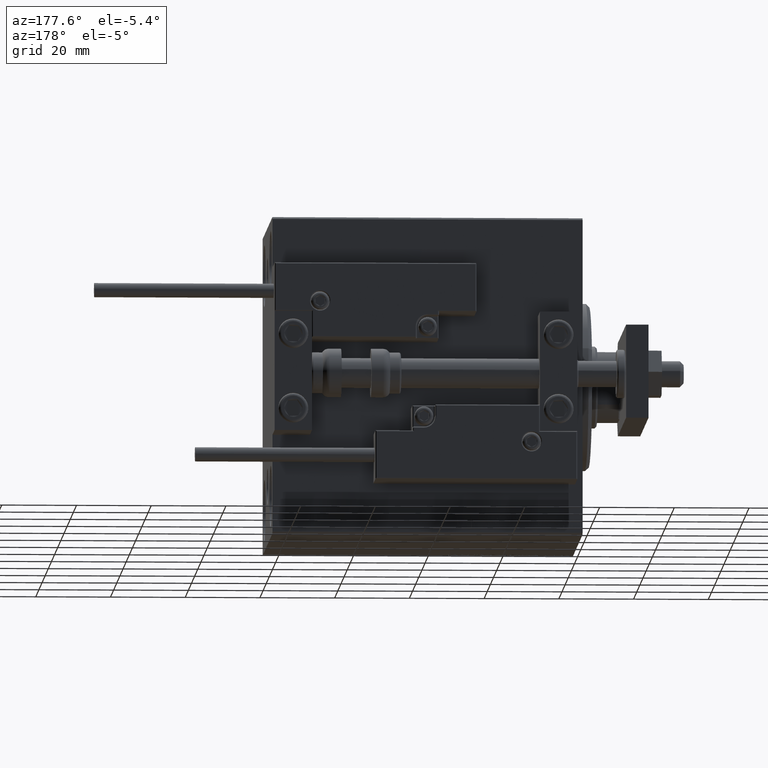
[diagram: clean part render]
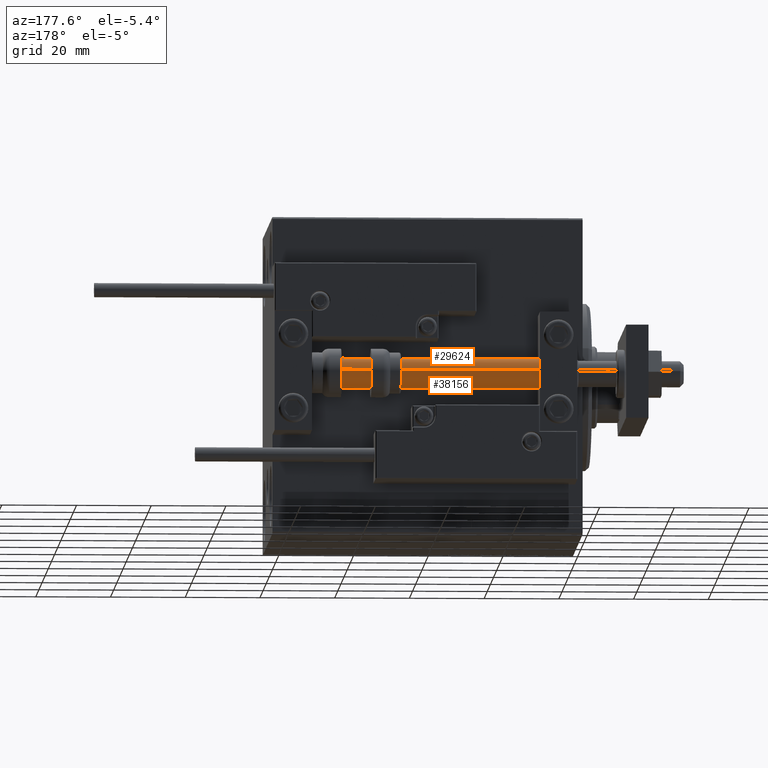
[diagram: same view with one multi-face feature highlighted, each face labeled with its STEP entity id]
A machine part, auxiliary view. The highlighted faces form ONE feature: a constant-radius fillet chain: 2 tangent blend faces with common blend radius 4 mm. The faces share edges in the B-rep.
Their STEP definitions:
[1] entity #38156 (Cylinder):
#3817 = ORIENTED_EDGE ( 'NONE', *, *, #25997, .F. ) ;
#4282 = DIRECTION ( 'NONE',  ( 0.000000000000000000, 0.000000000000000000, 1.000000000000000000 ) ) ;
#5791 = VERTEX_POINT ( 'NONE', #20587 ) ;
#8063 = LINE ( 'NONE', #19219, #34789 ) ;
#8356 = VECTOR ( 'NONE', #11526, 1000.000000000000000 ) ;
#10345 = FACE_OUTER_BOUND ( 'NONE', #11539, .T. ) ;
#10486 = EDGE_CURVE ( 'NONE', #33904, #5791, #20463, .T. ) ;
#11363 = DIRECTION ( 'NONE',  ( -0.000000000000000000, -0.000000000000000000, -1.000000000000000000 ) ) ;
#11526 = DIRECTION ( 'NONE',  ( -0.000000000000000000, -0.000000000000000000, -1.000000000000000000 ) ) ;
#11539 = EDGE_LOOP ( 'NONE', ( #40015, #3817, #43980, #38231 ) ) ;
#12011 = CARTESIAN_POINT ( 'NONE',  ( -4.000000000000000000, 0.000000000000000000, 83.00000000000000000 ) ) ;
#14391 = DIRECTION ( 'NONE',  ( -0.000000000000000000, -0.000000000000000000, -1.000000000000000000 ) ) ;
#15627 = VERTEX_POINT ( 'NONE', #15679 ) ;
#15679 = CARTESIAN_POINT ( 'NONE',  ( 4.000000000000000000, 4.898587196589412829E-16, 83.00000000000000000 ) ) ;
#19219 = CARTESIAN_POINT ( 'NONE',  ( 4.000000000000000000, 4.898587196589412829E-16, 83.00000000000000000 ) ) ;
#19376 = LINE ( 'NONE', #12011, #8356 ) ;
#20463 = CIRCLE ( 'NONE', #34181, 4.000000000000000000 ) ;
#20587 = CARTESIAN_POINT ( 'NONE',  ( 4.000000000000000000, 4.898587196589412829E-16, 2.000000000000029310 ) ) ;
#23138 = DIRECTION ( 'NONE',  ( -0.000000000000000000, -0.000000000000000000, 1.000000000000000000 ) ) ;
#24067 = VERTEX_POINT ( 'NONE', #30833 ) ;
#25797 = DIRECTION ( 'NONE',  ( -1.000000000000000000, 0.000000000000000000, 0.000000000000000000 ) ) ;
#25997 = EDGE_CURVE ( 'NONE', #24067, #15627, #45853, .T. ) ;
#27422 = CARTESIAN_POINT ( 'NONE',  ( 0.000000000000000000, 0.000000000000000000, 2.000000000000029310 ) ) ;
#27677 = DIRECTION ( 'NONE',  ( 1.000000000000000000, 0.000000000000000000, 0.000000000000000000 ) ) ;
#28666 = CARTESIAN_POINT ( 'NONE',  ( -4.000000000000000000, 0.000000000000000000, 2.000000000000029310 ) ) ;
#30833 = CARTESIAN_POINT ( 'NONE',  ( -4.000000000000000000, 0.000000000000000000, 83.00000000000000000 ) ) ;
#33146 = CYLINDRICAL_SURFACE ( 'NONE', #34848, 4.000000000000000000 ) ;
#33904 = VERTEX_POINT ( 'NONE', #28666 ) ;
#34181 = AXIS2_PLACEMENT_3D ( 'NONE', #27422, #23138, #27677 ) ;
#34689 = CARTESIAN_POINT ( 'NONE',  ( 0.000000000000000000, 0.000000000000000000, 83.00000000000000000 ) ) ;
#34789 = VECTOR ( 'NONE', #11363, 1000.000000000000000 ) ;
#34848 = AXIS2_PLACEMENT_3D ( 'NONE', #48567, #14391, #25797 ) ;
#37985 = DIRECTION ( 'NONE',  ( 1.000000000000000000, 0.000000000000000000, 0.000000000000000000 ) ) ;
#38156 = ADVANCED_FACE ( 'NONE', ( #10345 ), #33146, .T. ) ;
#38231 = ORIENTED_EDGE ( 'NONE', *, *, #10486, .T. ) ;
#38586 = AXIS2_PLACEMENT_3D ( 'NONE', #34689, #4282, #37985 ) ;
#40015 = ORIENTED_EDGE ( 'NONE', *, *, #49980, .F. ) ;
#42363 = EDGE_CURVE ( 'NONE', #24067, #33904, #19376, .T. ) ;
#43980 = ORIENTED_EDGE ( 'NONE', *, *, #42363, .T. ) ;
#45853 = CIRCLE ( 'NONE', #38586, 4.000000000000000000 ) ;
#48567 = CARTESIAN_POINT ( 'NONE',  ( 0.000000000000000000, 0.000000000000000000, 83.00000000000000000 ) ) ;
#49980 = EDGE_CURVE ( 'NONE', #15627, #5791, #8063, .T. ) ;
[2] entity #29624 (Cylinder):
#1001 = EDGE_LOOP ( 'NONE', ( #29452, #48168, #46679, #15800 ) ) ;
#1790 = CYLINDRICAL_SURFACE ( 'NONE', #44320, 4.000000000000000000 ) ;
#4214 = EDGE_CURVE ( 'NONE', #15627, #24067, #31554, .T. ) ;
#4756 = DIRECTION ( 'NONE',  ( -0.000000000000000000, -0.000000000000000000, 1.000000000000000000 ) ) ;
#5791 = VERTEX_POINT ( 'NONE', #20587 ) ;
#8063 = LINE ( 'NONE', #19219, #34789 ) ;
#8356 = VECTOR ( 'NONE', #11526, 1000.000000000000000 ) ;
#11363 = DIRECTION ( 'NONE',  ( -0.000000000000000000, -0.000000000000000000, -1.000000000000000000 ) ) ;
#11526 = DIRECTION ( 'NONE',  ( -0.000000000000000000, -0.000000000000000000, -1.000000000000000000 ) ) ;
#12011 = CARTESIAN_POINT ( 'NONE',  ( -4.000000000000000000, 0.000000000000000000, 83.00000000000000000 ) ) ;
#13206 = CARTESIAN_POINT ( 'NONE',  ( 0.000000000000000000, 0.000000000000000000, 83.00000000000000000 ) ) ;
#15627 = VERTEX_POINT ( 'NONE', #15679 ) ;
#15679 = CARTESIAN_POINT ( 'NONE',  ( 4.000000000000000000, 4.898587196589412829E-16, 83.00000000000000000 ) ) ;
#15800 = ORIENTED_EDGE ( 'NONE', *, *, #42363, .F. ) ;
#16473 = EDGE_CURVE ( 'NONE', #5791, #33904, #44846, .T. ) ;
#17007 = DIRECTION ( 'NONE',  ( -1.000000000000000000, 0.000000000000000000, 0.000000000000000000 ) ) ;
#17510 = FACE_OUTER_BOUND ( 'NONE', #1001, .T. ) ;
#19219 = CARTESIAN_POINT ( 'NONE',  ( 4.000000000000000000, 4.898587196589412829E-16, 83.00000000000000000 ) ) ;
#19376 = LINE ( 'NONE', #12011, #8356 ) ;
#20587 = CARTESIAN_POINT ( 'NONE',  ( 4.000000000000000000, 4.898587196589412829E-16, 2.000000000000029310 ) ) ;
#23055 = AXIS2_PLACEMENT_3D ( 'NONE', #30890, #4756, #34927 ) ;
#24067 = VERTEX_POINT ( 'NONE', #30833 ) ;
#28666 = CARTESIAN_POINT ( 'NONE',  ( -4.000000000000000000, 0.000000000000000000, 2.000000000000029310 ) ) ;
#29128 = AXIS2_PLACEMENT_3D ( 'NONE', #36420, #31898, #32385 ) ;
#29452 = ORIENTED_EDGE ( 'NONE', *, *, #4214, .F. ) ;
#29624 = ADVANCED_FACE ( 'NONE', ( #17510 ), #1790, .T. ) ;
#30833 = CARTESIAN_POINT ( 'NONE',  ( -4.000000000000000000, 0.000000000000000000, 83.00000000000000000 ) ) ;
#30890 = CARTESIAN_POINT ( 'NONE',  ( 0.000000000000000000, 0.000000000000000000, 2.000000000000029310 ) ) ;
#31554 = CIRCLE ( 'NONE', #29128, 4.000000000000000000 ) ;
#31898 = DIRECTION ( 'NONE',  ( 0.000000000000000000, 0.000000000000000000, 1.000000000000000000 ) ) ;
#32385 = DIRECTION ( 'NONE',  ( 1.000000000000000000, 0.000000000000000000, 0.000000000000000000 ) ) ;
#32953 = DIRECTION ( 'NONE',  ( -0.000000000000000000, -0.000000000000000000, -1.000000000000000000 ) ) ;
#33904 = VERTEX_POINT ( 'NONE', #28666 ) ;
#34789 = VECTOR ( 'NONE', #11363, 1000.000000000000000 ) ;
#34927 = DIRECTION ( 'NONE',  ( 1.000000000000000000, 0.000000000000000000, 0.000000000000000000 ) ) ;
#36420 = CARTESIAN_POINT ( 'NONE',  ( 0.000000000000000000, 0.000000000000000000, 83.00000000000000000 ) ) ;
#42363 = EDGE_CURVE ( 'NONE', #24067, #33904, #19376, .T. ) ;
#44320 = AXIS2_PLACEMENT_3D ( 'NONE', #13206, #32953, #17007 ) ;
#44846 = CIRCLE ( 'NONE', #23055, 4.000000000000000000 ) ;
#46679 = ORIENTED_EDGE ( 'NONE', *, *, #16473, .T. ) ;
#48168 = ORIENTED_EDGE ( 'NONE', *, *, #49980, .T. ) ;
#49980 = EDGE_CURVE ( 'NONE', #15627, #5791, #8063, .T. ) ;